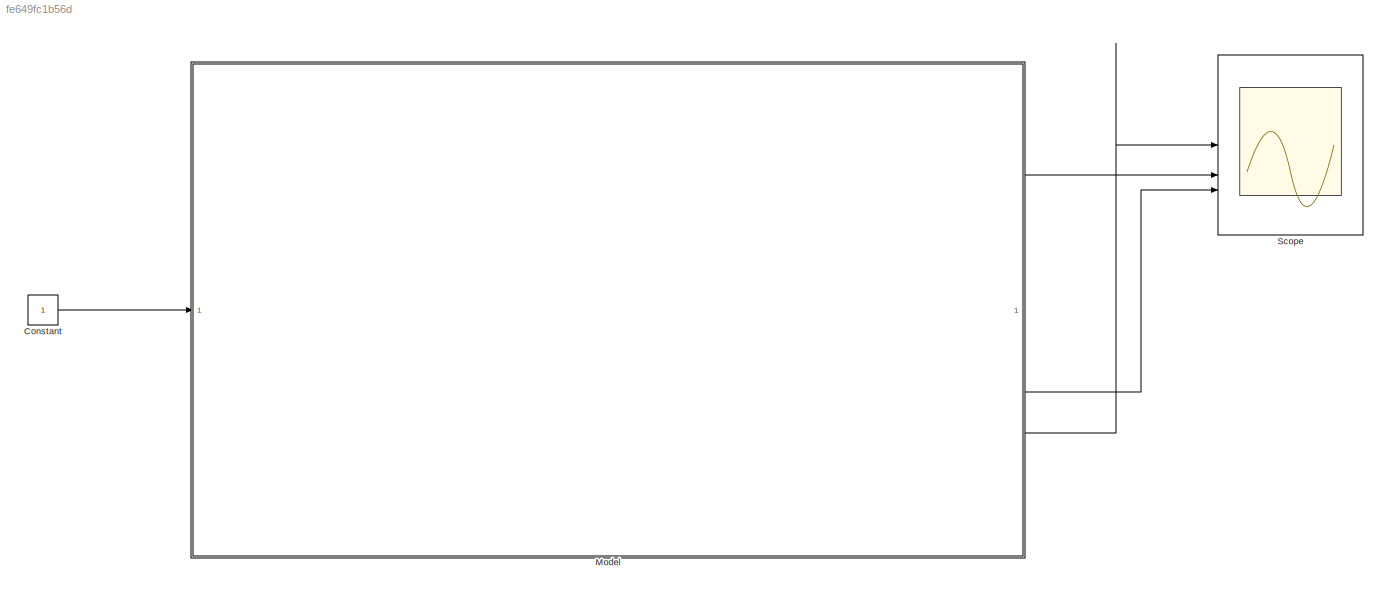
MODEL slx_fe649fc1b56d
KIND model
CONFIG AbsTol = auto
CONFIG EnableMultiTasking = off
CONFIG FixedStep = auto
CONFIG MaxStep = auto
CONFIG MinStep = auto
CONFIG RelTol = 1e-3
CONFIG SampleTimeConstraint = Unconstrained
CONFIG SolverName = VariableStepAuto
CONFIG StartTime = 0.0
CONFIG StopTime = 1
BLOCK [Constant] Constant
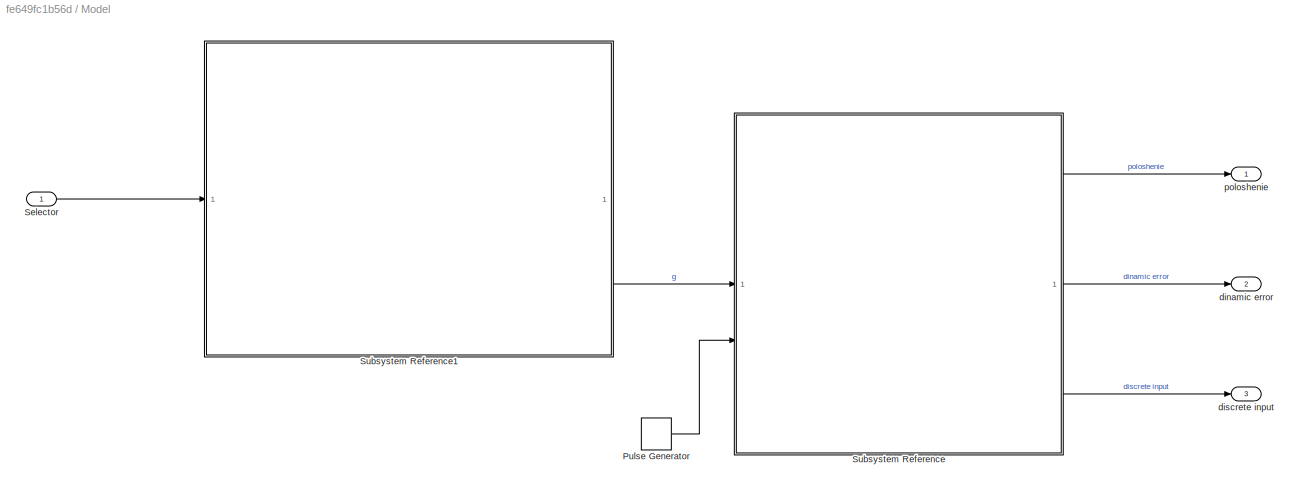
BLOCK [SubSystem] Model
BLOCK [DiscretePulseGenerator] Model/Pulse Generator
  Period = 0.01
  PulseType = Time based
  PulseWidth = 50
BLOCK [Inport] Model/Selector
BLOCK [SubSystem] Model/Subsystem Reference
  K = 7
  ReferencedSubsystem = robot
  T1 = 0.1
  T2 = 0.05
  kd = kd
  ki = ki
  kp = kp
BLOCK [SubSystem] Model/Subsystem Reference1
  ReferencedSubsystem = testSelector
  amp1 = 12
  amp2 = 12
  amp3 = 12
BLOCK [Outport] Model/dinamic error
  Port = 2
BLOCK [Outport] Model/discrete input
  Port = 3
BLOCK [Outport] Model/poloshenie
BLOCK [Scope] Scope
  Floating = off
  NumInputPorts = 3
  ScopeSpecificationString = Simulink.scopes.TimeScopeBlockCfg('CurrentConfiguration', extmgr.ConfigurationSet(extmgr.Configuration('Core','General UI',true,'FigureColor',[1 1 1]),extmgr.Configuration('Core','Source UI',true),extmgr.Configuration('Sources','WiredSimulink',true),extmgr.Configuration('Visuals','Time Domain',true,'SerializedDisplays',{struct('MinYLimReal','-1480.37005','MaxYLimReal','1468.61889','YLabelReal','',...<+3179ch>
LINE Constant:1 -> Model:1
LINE Model/Pulse Generator:1 -> Model/Subsystem Reference:2
LINE Model/Selector:1 -> Model/Subsystem Reference1:1
LINE Model/Subsystem Reference1:1 -> Model/Subsystem Reference:1
LINE Model/Subsystem Reference:1 -> Model/poloshenie:1
LINE Model/Subsystem Reference:2 -> Model/dinamic error:1
LINE Model/Subsystem Reference:3 -> Model/discrete input:1
LINE Model:1 -> Scope:2
LINE Model:2 -> Scope:3
LINE Model:3 -> Scope:1
